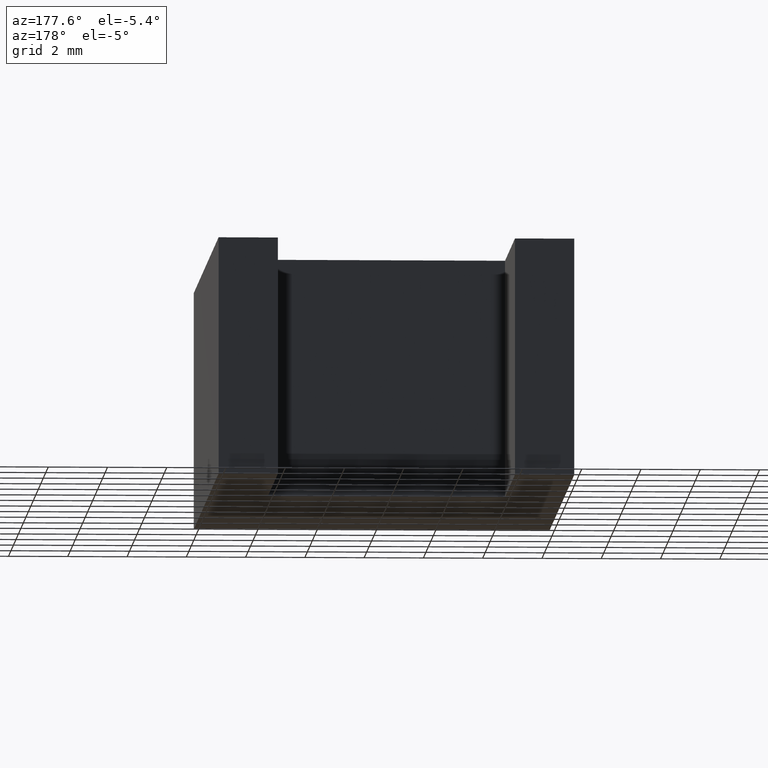
[diagram: clean part render]
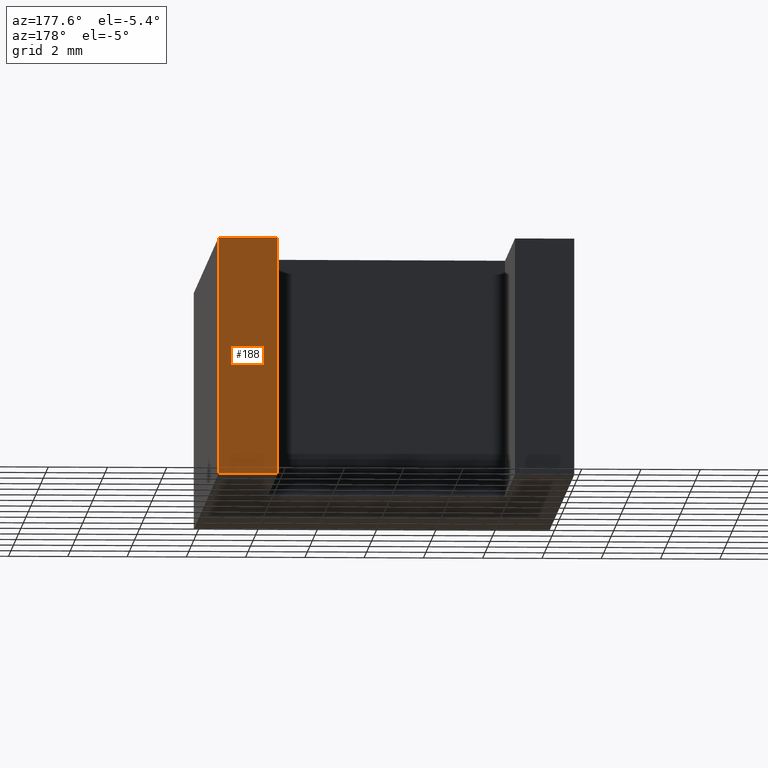
[diagram: same view with one face highlighted and labeled with its STEP entity id]
A machine part, auxiliary view. The second image highlights one B-rep face of the part: STEP entity #188.
In plain terms, the highlighted planar face has unit normal (0, 1, 0).
Its self-contained STEP definition (entity closure, byte-faithful):
#22=FACE_OUTER_BOUND('',#32,.T.);
#32=EDGE_LOOP('',(#152,#153,#154,#155));
#43=LINE('',#288,#67);
#54=LINE('',#310,#78);
#55=LINE('',#313,#79);
#56=LINE('',#314,#80);
#67=VECTOR('',#236,10.);
#78=VECTOR('',#257,10.);
#79=VECTOR('',#260,10.);
#80=VECTOR('',#261,10.);
#85=VERTEX_POINT('',#274);
#91=VERTEX_POINT('',#286);
#97=VERTEX_POINT('',#308);
#98=VERTEX_POINT('',#312);
#107=EDGE_CURVE('',#85,#91,#43,.T.);
#118=EDGE_CURVE('',#97,#91,#54,.T.);
#119=EDGE_CURVE('',#97,#98,#55,.T.);
#120=EDGE_CURVE('',#98,#85,#56,.T.);
#152=ORIENTED_EDGE('',*,*,#119,.T.);
#153=ORIENTED_EDGE('',*,*,#120,.T.);
#154=ORIENTED_EDGE('',*,*,#107,.T.);
#155=ORIENTED_EDGE('',*,*,#118,.F.);
#178=PLANE('',#221);
#188=ADVANCED_FACE('',(#22),#178,.T.);
#221=AXIS2_PLACEMENT_3D('',#311,#258,#259);
#236=DIRECTION('',(-1.,1.11022302462516E-15,0.));
#257=DIRECTION('',(0.,0.,-1.));
#258=DIRECTION('center_axis',(1.11022302462516E-15,1.,0.));
#259=DIRECTION('ref_axis',(0.,0.,1.));
#260=DIRECTION('',(1.,-1.11022302462516E-15,0.));
#261=DIRECTION('',(0.,0.,-1.));
#274=CARTESIAN_POINT('',(6.,10.,-4.));
#286=CARTESIAN_POINT('',(4.,10.,-4.));
#288=CARTESIAN_POINT('',(4.,10.,-4.));
#308=CARTESIAN_POINT('',(4.,10.,4.));
#310=CARTESIAN_POINT('',(4.,10.,0.));
#311=CARTESIAN_POINT('Origin',(4.,10.,0.));
#312=CARTESIAN_POINT('',(6.,10.,4.));
#313=CARTESIAN_POINT('',(4.,10.,4.));
#314=CARTESIAN_POINT('',(6.,10.,0.));